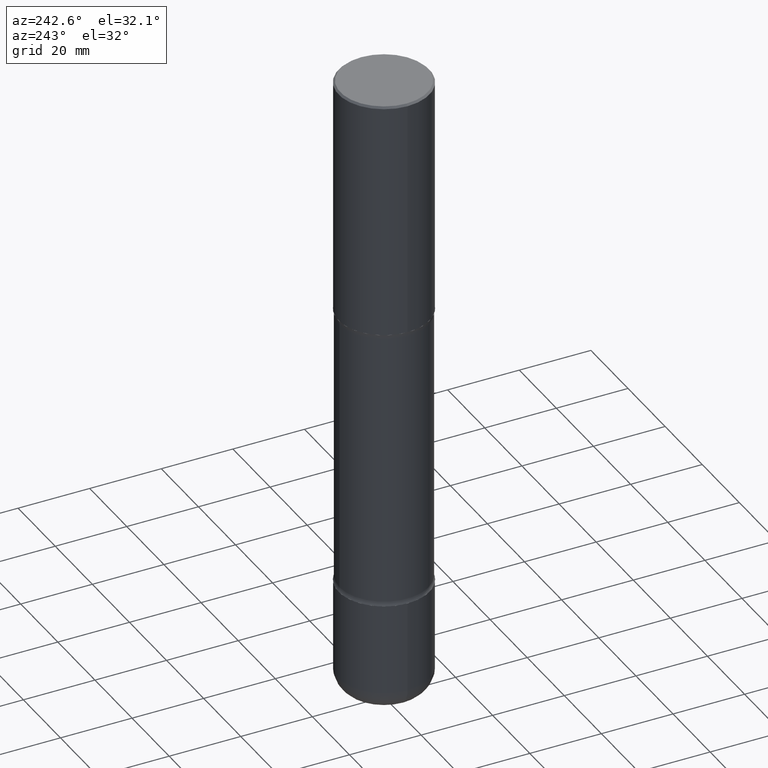
[diagram: clean part render]
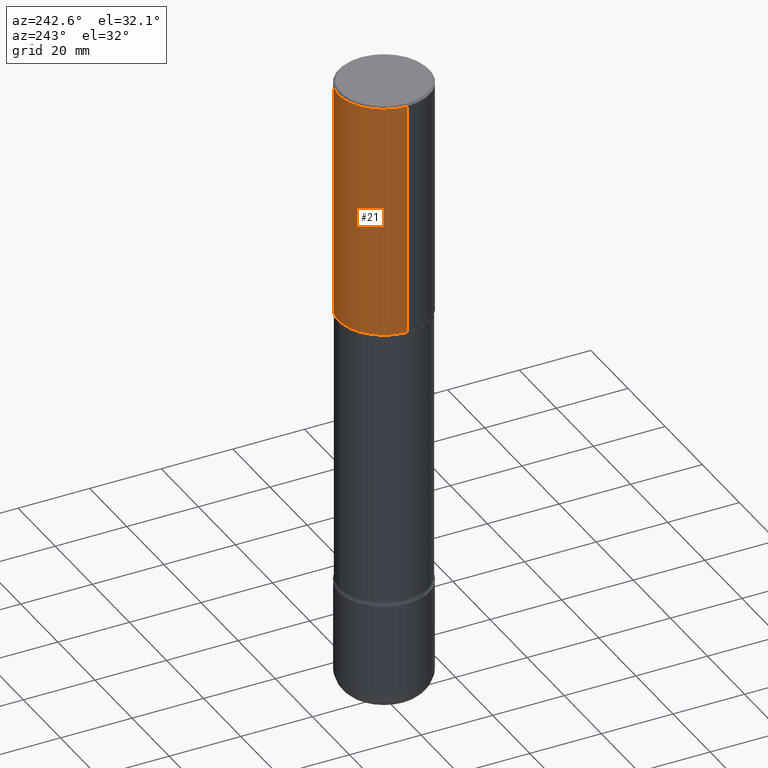
[diagram: same view with one face highlighted and labeled with its STEP entity id]
A machine part, auxiliary view. The second image highlights one B-rep face of the part: STEP entity #21.
In plain terms, the highlighted cylindrical surface (partial cylindrical patch) has radius 12.7 mm, axis along (-0, 0, 1).
Its self-contained STEP definition (entity closure, byte-faithful):
#1 = VERTEX_POINT ( 'NONE', #482 ) ;
#21 = ADVANCED_FACE ( 'NONE', ( #185 ), #231, .T. ) ;
#24 = DIRECTION ( 'NONE',  ( -2.445468806185136877E-29, 3.491481338843145188E-15, 1.000000000000000000 ) ) ;
#27 = CIRCLE ( 'NONE', #42, 0.5000000000000004441 ) ;
#30 = AXIS2_PLACEMENT_3D ( 'NONE', #168, #310, #300 ) ;
#42 = AXIS2_PLACEMENT_3D ( 'NONE', #113, #152, #456 ) ;
#46 = VERTEX_POINT ( 'NONE', #99 ) ;
#70 = AXIS2_PLACEMENT_3D ( 'NONE', #189, #143, #528 ) ;
#71 = CIRCLE ( 'NONE', #30, 0.5000000000000000000 ) ;
#78 = CARTESIAN_POINT ( 'NONE',  ( -0.5000000000000000000, 3.421651712066270057E-15, -0.02000000000000010797 ) ) ;
#99 = CARTESIAN_POINT ( 'NONE',  ( -0.5000000000000004441, -1.064770391819553504E-15, -2.625000000000000000 ) ) ;
#110 = VECTOR ( 'NONE', #245, 39.37007874015748143 ) ;
#112 = EDGE_CURVE ( 'NONE', #1, #46, #27, .T. ) ;
#113 = CARTESIAN_POINT ( 'NONE',  ( 6.419355616235983567E-29, -9.165138514463256612E-15, -2.625000000000000000 ) ) ;
#139 = ORIENTED_EDGE ( 'NONE', *, *, #160, .T. ) ;
#143 = DIRECTION ( 'NONE',  ( -2.445468806185136597E-29, 3.491481338843145583E-15, 1.000000000000000000 ) ) ;
#152 = DIRECTION ( 'NONE',  ( -2.445468806185136597E-29, 3.491481338843145583E-15, 1.000000000000000000 ) ) ;
#160 = EDGE_CURVE ( 'NONE', #46, #216, #433, .T. ) ;
#168 = CARTESIAN_POINT ( 'NONE',  ( 4.890937612370299433E-31, -6.982962677686328587E-17, -0.02000000000000010797 ) ) ;
#185 = FACE_OUTER_BOUND ( 'NONE', #474, .T. ) ;
#189 = CARTESIAN_POINT ( 'NONE',  ( 0.000000000000000000, 0.000000000000000000, 0.000000000000000000 ) ) ;
#213 = LINE ( 'NONE', #377, #110 ) ;
#216 = VERTEX_POINT ( 'NONE', #78 ) ;
#231 = CYLINDRICAL_SURFACE ( 'NONE', #70, 0.5000000000000002220 ) ;
#245 = DIRECTION ( 'NONE',  ( -2.445468806185136877E-29, 3.491481338843145188E-15, 1.000000000000000000 ) ) ;
#249 = EDGE_CURVE ( 'NONE', #1, #375, #213, .T. ) ;
#255 = ORIENTED_EDGE ( 'NONE', *, *, #249, .F. ) ;
#283 = ORIENTED_EDGE ( 'NONE', *, *, #481, .F. ) ;
#300 = DIRECTION ( 'NONE',  ( 1.000000000000000000, -6.982962677686266711E-15, 0.000000000000000000 ) ) ;
#310 = DIRECTION ( 'NONE',  ( -2.445468806185136597E-29, 3.491481338843145583E-15, 1.000000000000000000 ) ) ;
#316 = VECTOR ( 'NONE', #24, 39.37007874015748143 ) ;
#356 = CARTESIAN_POINT ( 'NONE',  ( 0.5000000000000000000, -3.500078625662629079E-15, -0.02000000000000010797 ) ) ;
#375 = VERTEX_POINT ( 'NONE', #356 ) ;
#377 = CARTESIAN_POINT ( 'NONE',  ( 0.5000000000000002220, -3.491481338843135327E-15, 2.438088387897969298E-29 ) ) ;
#429 = CARTESIAN_POINT ( 'NONE',  ( -0.5000000000000002220, 3.552713678800502507E-15, -2.459467545127454292E-29 ) ) ;
#433 = LINE ( 'NONE', #429, #316 ) ;
#456 = DIRECTION ( 'NONE',  ( 1.000000000000000000, -6.982962677686268288E-15, 0.000000000000000000 ) ) ;
#465 = ORIENTED_EDGE ( 'NONE', *, *, #112, .T. ) ;
#474 = EDGE_LOOP ( 'NONE', ( #465, #139, #283, #255 ) ) ;
#481 = EDGE_CURVE ( 'NONE', #375, #216, #71, .T. ) ;
#482 = CARTESIAN_POINT ( 'NONE',  ( 0.5000000000000004441, -1.265661985330639470E-14, -2.625000000000000000 ) ) ;
#528 = DIRECTION ( 'NONE',  ( 1.000000000000000000, -6.982962677686267499E-15, 4.876176775795936353E-29 ) ) ;